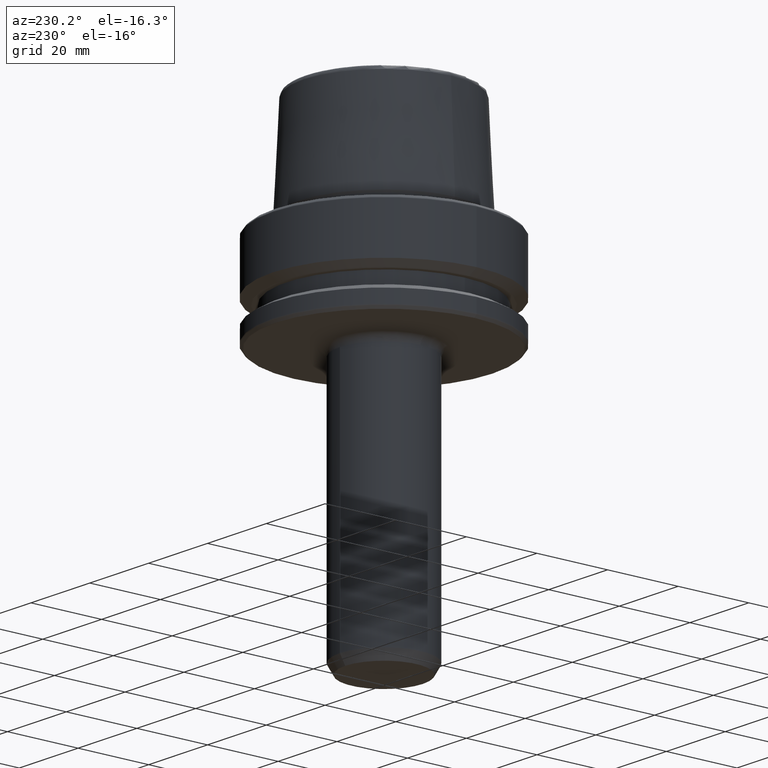
[diagram: clean part render]
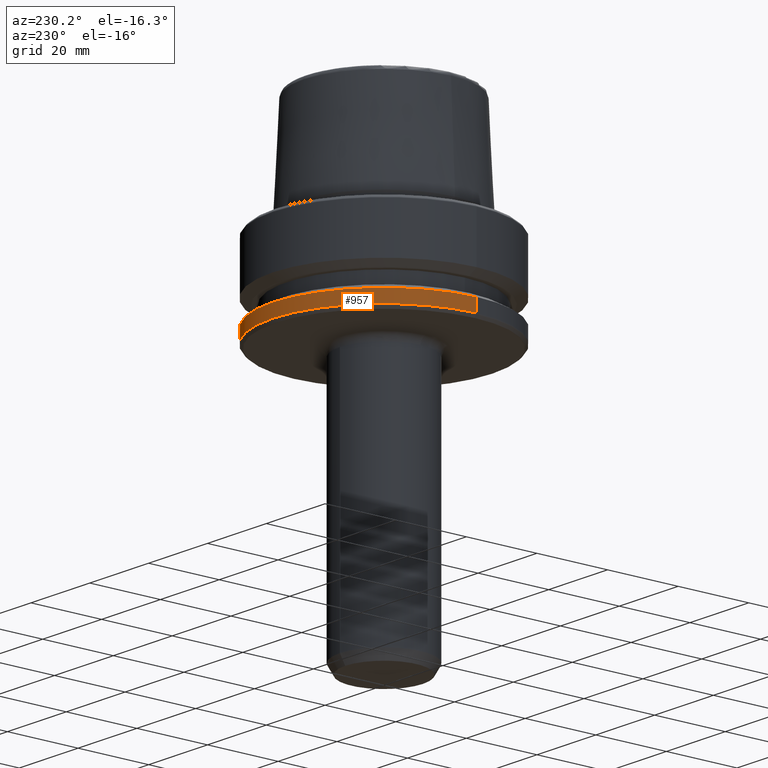
[diagram: same view with one face highlighted and labeled with its STEP entity id]
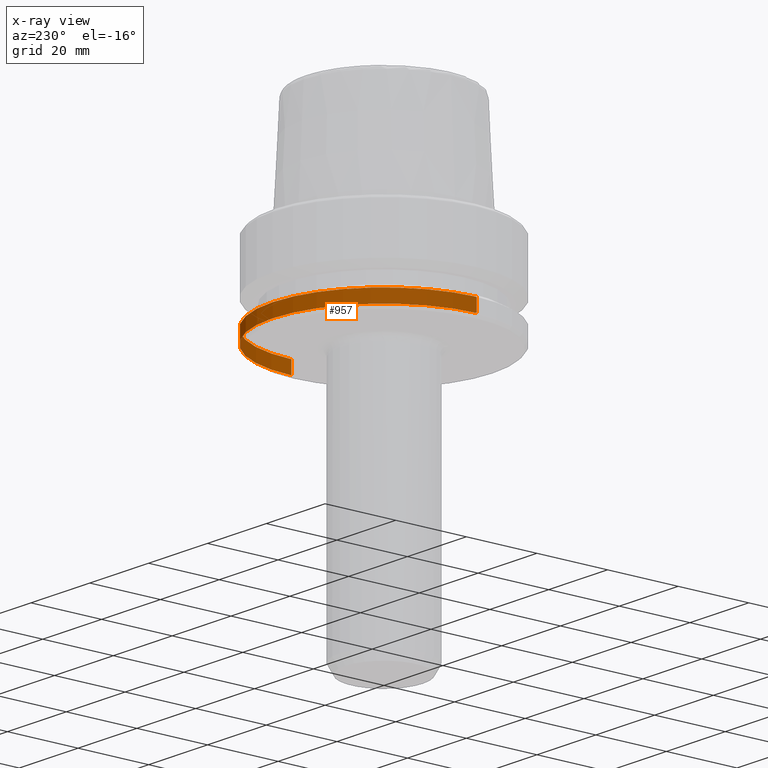
[diagram: x-ray of the same camera — body ghosted, the highlighted face saturated]
A machine part, auxiliary view. The second image highlights one B-rep face of the part: STEP entity #957.
The next image is the same camera in x-ray: the body ghosted, the highlighted face saturated — about 0% of this face is hidden behind the body in this view.
In plain terms, the highlighted cylindrical surface (partial cylindrical patch) has radius 31.5 mm, axis along (-0, -0, 1).
Its self-contained STEP definition (entity closure, byte-faithful):
#57 = LINE ( 'NONE', #361, #494 ) ;
#72 = VERTEX_POINT ( 'NONE', #968 ) ;
#162 = ORIENTED_EDGE ( 'NONE', *, *, #898, .F. ) ;
#170 = VERTEX_POINT ( 'NONE', #310 ) ;
#218 = LINE ( 'NONE', #396, #1073 ) ;
#233 = FACE_OUTER_BOUND ( 'NONE', #417, .T. ) ;
#310 = CARTESIAN_POINT ( 'NONE',  ( 31.50000000000000000, 0.0000000000000000000, -25.03431457505077200 ) ) ;
#317 = DIRECTION ( 'NONE',  ( -0.0000000000000000000, -0.0000000000000000000, 1.000000000000000000 ) ) ;
#361 = CARTESIAN_POINT ( 'NONE',  ( -31.50000000000000000, 3.857637417314162700E-015, 78.96908074195309300 ) ) ;
#369 = DIRECTION ( 'NONE',  ( -0.0000000000000000000, -0.0000000000000000000, 1.000000000000000000 ) ) ;
#381 = ORIENTED_EDGE ( 'NONE', *, *, #770, .T. ) ;
#396 = CARTESIAN_POINT ( 'NONE',  ( 31.50000000000000000, 0.0000000000000000000, 78.96908074195309300 ) ) ;
#397 = VERTEX_POINT ( 'NONE', #966 ) ;
#412 = CIRCLE ( 'NONE', #833, 31.50000000000000000 ) ;
#417 = EDGE_LOOP ( 'NONE', ( #616, #381, #644, #162 ) ) ;
#437 = AXIS2_PLACEMENT_3D ( 'NONE', #861, #924, #959 ) ;
#455 = EDGE_CURVE ( 'NONE', #170, #72, #1206, .T. ) ;
#494 = VECTOR ( 'NONE', #369, 1000.000000000000000 ) ;
#616 = ORIENTED_EDGE ( 'NONE', *, *, #455, .T. ) ;
#644 = ORIENTED_EDGE ( 'NONE', *, *, #778, .F. ) ;
#661 = CARTESIAN_POINT ( 'NONE',  ( 0.0000000000000000000, 0.0000000000000000000, -21.37749907475931700 ) ) ;
#702 = DIRECTION ( 'NONE',  ( -0.0000000000000000000, -0.0000000000000000000, 1.000000000000000000 ) ) ;
#770 = EDGE_CURVE ( 'NONE', #72, #1022, #57, .T. ) ;
#778 = EDGE_CURVE ( 'NONE', #397, #1022, #412, .T. ) ;
#791 = AXIS2_PLACEMENT_3D ( 'NONE', #1047, #1197, #1209 ) ;
#833 = AXIS2_PLACEMENT_3D ( 'NONE', #661, #702, #905 ) ;
#861 = CARTESIAN_POINT ( 'NONE',  ( 0.0000000000000000000, 0.0000000000000000000, 78.96908074195309300 ) ) ;
#898 = EDGE_CURVE ( 'NONE', #170, #397, #218, .T. ) ;
#905 = DIRECTION ( 'NONE',  ( 1.000000000000000000, 0.0000000000000000000, 0.0000000000000000000 ) ) ;
#911 = CARTESIAN_POINT ( 'NONE',  ( -31.50000000000000000, 3.857637417314162700E-015, -21.37749907475931700 ) ) ;
#924 = DIRECTION ( 'NONE',  ( -0.0000000000000000000, -0.0000000000000000000, 1.000000000000000000 ) ) ;
#957 = ADVANCED_FACE ( 'NONE', ( #233 ), #1236, .T. ) ;
#959 = DIRECTION ( 'NONE',  ( 1.000000000000000000, 0.0000000000000000000, 0.0000000000000000000 ) ) ;
#966 = CARTESIAN_POINT ( 'NONE',  ( 31.50000000000000000, 0.0000000000000000000, -21.37749907475931700 ) ) ;
#968 = CARTESIAN_POINT ( 'NONE',  ( -31.50000000000000000, 3.857637417314161900E-015, -25.03431457505077200 ) ) ;
#1022 = VERTEX_POINT ( 'NONE', #911 ) ;
#1047 = CARTESIAN_POINT ( 'NONE',  ( 0.0000000000000000000, 0.0000000000000000000, -25.03431457505077200 ) ) ;
#1073 = VECTOR ( 'NONE', #317, 1000.000000000000000 ) ;
#1197 = DIRECTION ( 'NONE',  ( -0.0000000000000000000, -0.0000000000000000000, 1.000000000000000000 ) ) ;
#1206 = CIRCLE ( 'NONE', #791, 31.50000000000000000 ) ;
#1209 = DIRECTION ( 'NONE',  ( 1.000000000000000000, 0.0000000000000000000, 0.0000000000000000000 ) ) ;
#1236 = CYLINDRICAL_SURFACE ( 'NONE', #437, 31.50000000000000000 ) ;